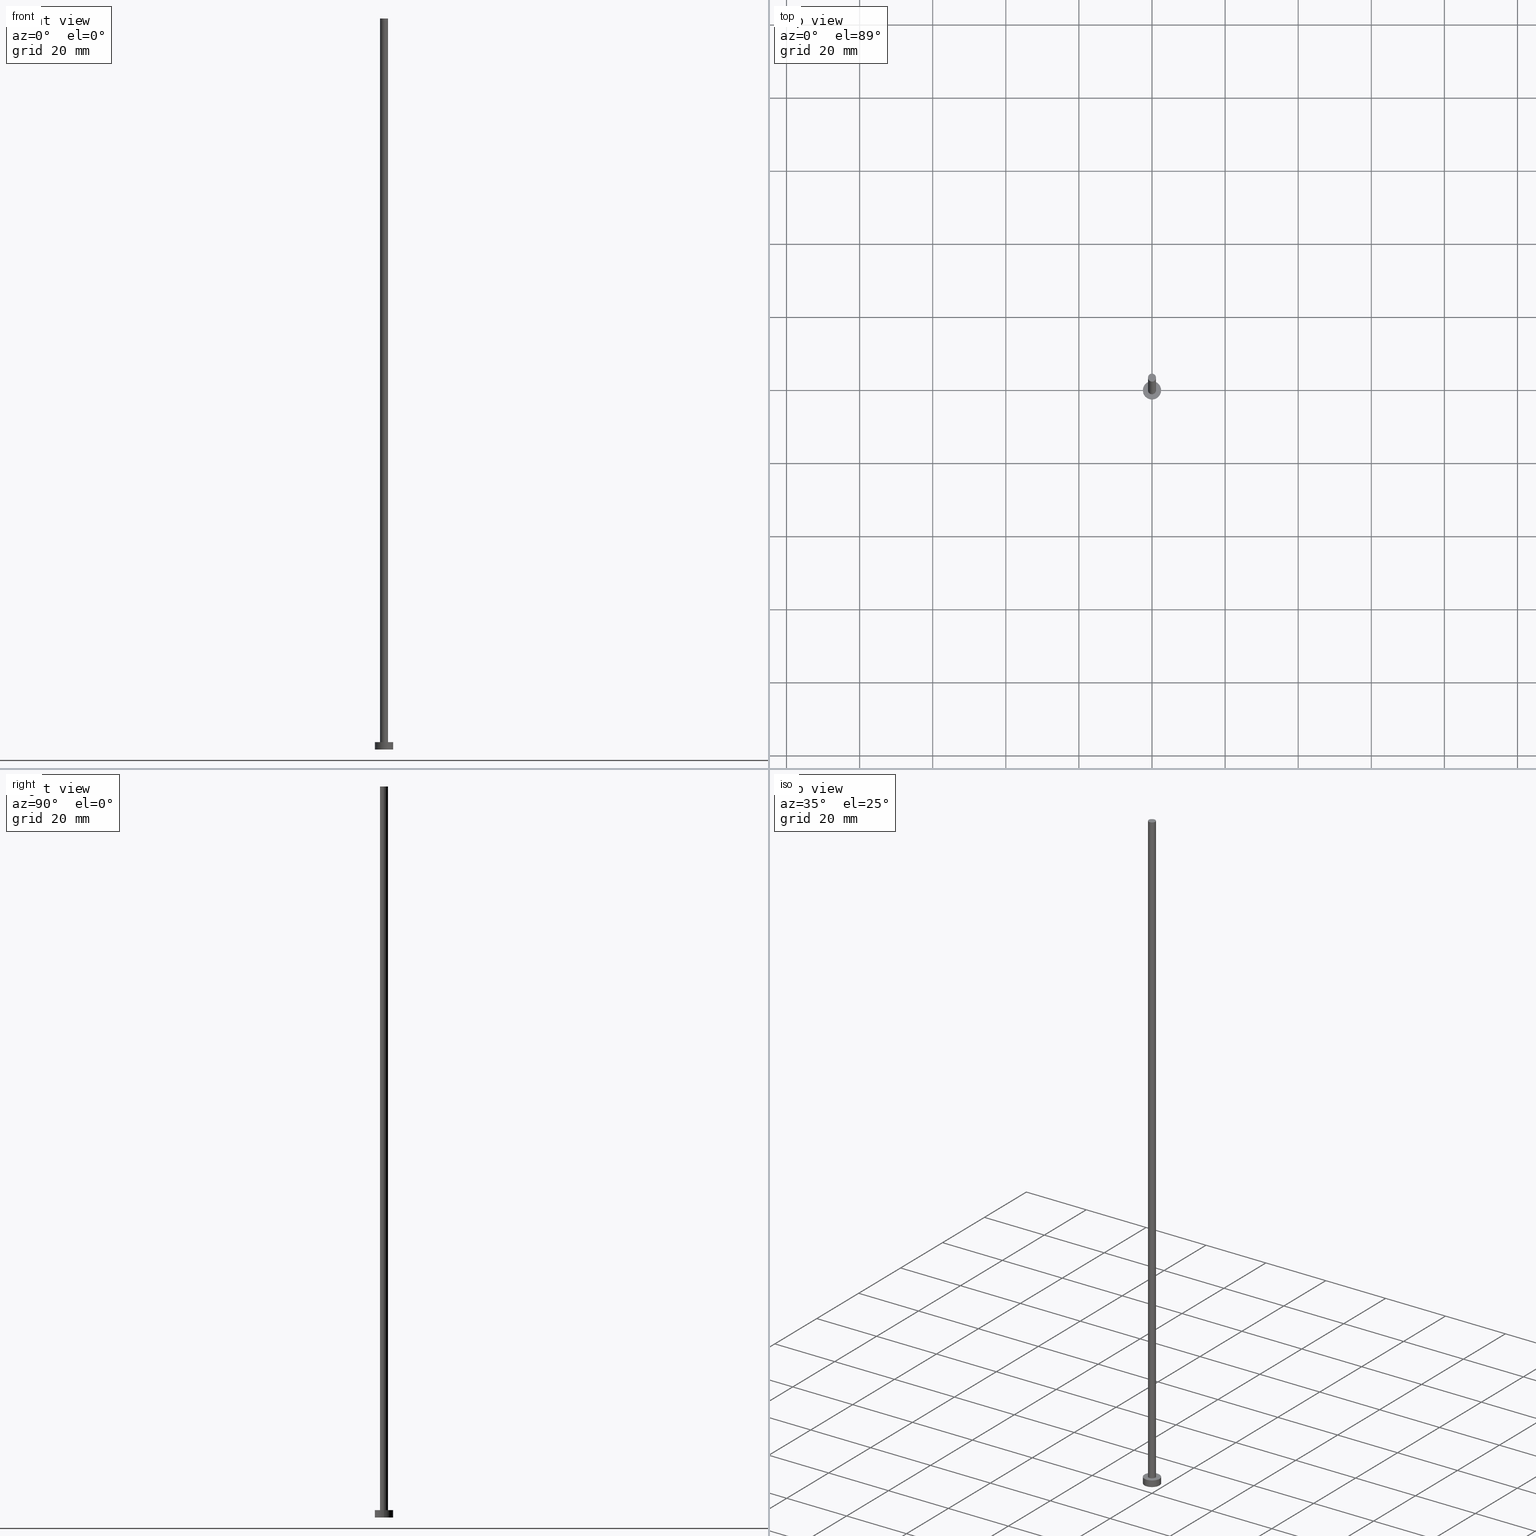
[diagram: canonical four-view strip — front | top / right | iso, engineering-drawing reading convention]
A machine part, canonical four-view strip (front | top / right | iso — engineering-drawing reading convention). The complete STEP part file that produces these views, byte-faithful:
ISO-10303-21;
HEADER;
FILE_DESCRIPTION (( 'STEP AP203' ),
    '1' );
FILE_NAME ('8570.STEP',
    '2023-02-13T15:58:24',
    ( '' ),
    ( '' ),
    'SwSTEP 2.0',
    'SolidWorks 2019',
    '' );
FILE_SCHEMA (( 'CONFIG_CONTROL_DESIGN' ));
ENDSEC;

DATA;
#1 = CARTESIAN_POINT ( 'NONE',  ( 0.000000000000000000, 0.000000000000000000, 200.0000000000000000 ) ) ;
#2 = PERSON ( 'NEUR�EN�', 'NEUR�EN�', 'NEUR�EN�', ('NEUR�EN�'), ('NEUR�EN�'), ('NEUR�EN�') ) ;
#3 = CC_DESIGN_PERSON_AND_ORGANIZATION_ASSIGNMENT ( #29, #131, ( #221 ) ) ;
#4 = ORIENTED_EDGE ( 'NONE', *, *, #111, .F. ) ;
#5 = FACE_OUTER_BOUND ( 'NONE', #183, .T. ) ;
#6 = APPROVAL_PERSON_ORGANIZATION ( #172, #46, #38 ) ;
#7 = DIRECTION ( 'NONE',  ( 1.000000000000000000, 0.000000000000000000, -0.000000000000000000 ) ) ;
#8 = ORIENTED_EDGE ( 'NONE', *, *, #111, .T. ) ;
#9 =( LENGTH_UNIT ( ) NAMED_UNIT ( * ) SI_UNIT ( .MILLI., .METRE. ) );
#10 = CARTESIAN_POINT ( 'NONE',  ( 0.000000000000000000, 0.000000000000000000, 2.000000000000000000 ) ) ;
#11 = CARTESIAN_POINT ( 'NONE',  ( 0.000000000000000000, 0.000000000000000000, 200.0000000000000000 ) ) ;
#12 = EDGE_LOOP ( 'NONE', ( #61, #49 ) ) ;
#13 = PERSON_AND_ORGANIZATION ( #2, #56 ) ;
#14 = AXIS2_PLACEMENT_3D ( 'NONE', #1, #95, #231 ) ;
#15 = DATE_AND_TIME ( #116, #31 ) ;
#16 = DIRECTION ( 'NONE',  ( -0.000000000000000000, -0.000000000000000000, -1.000000000000000000 ) ) ;
#17 = CARTESIAN_POINT ( 'NONE',  ( -1.100000000000000089, 0.000000000000000000, 200.0000000000000000 ) ) ;
#18 = AXIS2_PLACEMENT_3D ( 'NONE', #94, #223, #184 ) ;
#19 = EDGE_CURVE ( 'NONE', #120, #109, #247, .T. ) ;
#20 = UNCERTAINTY_MEASURE_WITH_UNIT (LENGTH_MEASURE( 1.000000000000000082E-05 ), #9, 'distance_accuracy_value', 'NONE');
#21 = CIRCLE ( 'NONE', #85, 2.500000000000000000 ) ;
#22 = PLANE ( 'NONE',  #133 ) ;
#23 = CC_DESIGN_PERSON_AND_ORGANIZATION_ASSIGNMENT ( #170, #234, ( #44 ) ) ;
#24 = CYLINDRICAL_SURFACE ( 'NONE', #115, 1.100000000000000089 ) ;
#25 = VERTEX_POINT ( 'NONE', #151 ) ;
#26 = ORIENTED_EDGE ( 'NONE', *, *, #242, .F. ) ;
#27 = DIRECTION ( 'NONE',  ( 0.000000000000000000, 0.000000000000000000, 1.000000000000000000 ) ) ;
#28 = DATE_AND_TIME ( #93, #117 ) ;
#29 = PERSON_AND_ORGANIZATION ( #2, #56 ) ;
#30 = PERSON_AND_ORGANIZATION ( #2, #56 ) ;
#31 = LOCAL_TIME ( 16, 58, 24.00000000000000000, #153 ) ;
#32 = DIRECTION ( 'NONE',  ( 0.000000000000000000, 0.000000000000000000, 1.000000000000000000 ) ) ;
#33 = PERSON_AND_ORGANIZATION_ROLE ( 'design_owner' ) ;
#34 = CARTESIAN_POINT ( 'NONE',  ( 0.000000000000000000, 0.000000000000000000, 2.000000000000000000 ) ) ;
#35 = DATE_AND_TIME ( #71, #174 ) ;
#36 = SHAPE_DEFINITION_REPRESENTATION ( #200, #68 ) ;
#37 = CARTESIAN_POINT ( 'NONE',  ( 1.100000000000000089, 1.347111479062088503E-16, 200.0000000000000000 ) ) ;
#38 = APPROVAL_ROLE ( '' ) ;
#39 = DIRECTION ( 'NONE',  ( 0.000000000000000000, 0.000000000000000000, 1.000000000000000000 ) ) ;
#40 = PERSON_AND_ORGANIZATION ( #2, #56 ) ;
#41 = EDGE_CURVE ( 'NONE', #163, #204, #125, .T. ) ;
#42 = AXIS2_PLACEMENT_3D ( 'NONE', #164, #48, #226 ) ;
#43 = ORIENTED_EDGE ( 'NONE', *, *, #90, .T. ) ;
#44 = SECURITY_CLASSIFICATION ( '', '', #186 ) ;
#45 = ORIENTED_EDGE ( 'NONE', *, *, #84, .F. ) ;
#46 = APPROVAL ( #74, 'NEUR�EN�' ) ;
#47 = ORIENTED_EDGE ( 'NONE', *, *, #199, .T. ) ;
#48 = DIRECTION ( 'NONE',  ( 0.000000000000000000, 0.000000000000000000, 1.000000000000000000 ) ) ;
#49 = ORIENTED_EDGE ( 'NONE', *, *, #218, .T. ) ;
#50 = DIRECTION ( 'NONE',  ( -0.000000000000000000, -0.000000000000000000, -1.000000000000000000 ) ) ;
#51 = COORDINATED_UNIVERSAL_TIME_OFFSET ( 1, 0, .AHEAD. ) ;
#52 = DIRECTION ( 'NONE',  ( 1.000000000000000000, 0.000000000000000000, 0.000000000000000000 ) ) ;
#53 = APPROVAL ( #110, 'NEUR�EN�' ) ;
#54 = APPROVAL_ROLE ( '' ) ;
#55 = ORIENTED_EDGE ( 'NONE', *, *, #219, .F. ) ;
#56 = ORGANIZATION ( 'NEUR�EN�', 'NEUR�EN�', '' ) ;
#57 = ADVANCED_FACE ( 'NONE', ( #128 ), #198, .T. ) ;
#58 = AXIS2_PLACEMENT_3D ( 'NONE', #225, #165, #213 ) ;
#59 = ORIENTED_EDGE ( 'NONE', *, *, #242, .T. ) ;
#60 = LINE ( 'NONE', #141, #250 ) ;
#61 = ORIENTED_EDGE ( 'NONE', *, *, #41, .T. ) ;
#62 = CARTESIAN_POINT ( 'NONE',  ( 0.000000000000000000, 0.000000000000000000, 200.0000000000000000 ) ) ;
#63 = AXIS2_PLACEMENT_3D ( 'NONE', #235, #230, #52 ) ;
#64 = ORIENTED_EDGE ( 'NONE', *, *, #199, .F. ) ;
#65 = EDGE_CURVE ( 'NONE', #240, #25, #21, .T. ) ;
#66 = DIRECTION ( 'NONE',  ( 0.000000000000000000, 0.000000000000000000, 1.000000000000000000 ) ) ;
#67 = CARTESIAN_POINT ( 'NONE',  ( 0.000000000000000000, 0.000000000000000000, 0.000000000000000000 ) ) ;
#68 = ADVANCED_BREP_SHAPE_REPRESENTATION ( '8570', ( #195, #63 ), #254 ) ;
#69 = LOCAL_TIME ( 16, 58, 24.00000000000000000, #89 ) ;
#70 = DIRECTION ( 'NONE',  ( 0.000000000000000000, 0.000000000000000000, 1.000000000000000000 ) ) ;
#71 = CALENDAR_DATE ( 2023, 13, 2 ) ;
#72 = FACE_OUTER_BOUND ( 'NONE', #12, .T. ) ;
#73 = ADVANCED_FACE ( 'NONE', ( #210, #72 ), #196, .T. ) ;
#74 = APPROVAL_STATUS ( 'not_yet_approved' ) ;
#75 = CARTESIAN_POINT ( 'NONE',  ( 0.000000000000000000, 0.000000000000000000, 2.000000000000000000 ) ) ;
#76 = AXIS2_PLACEMENT_3D ( 'NONE', #75, #32, #212 ) ;
#77 = CARTESIAN_POINT ( 'NONE',  ( 2.500000000000000000, 3.061616997868383141E-16, 2.000000000000000000 ) ) ;
#78 = CALENDAR_DATE ( 2023, 13, 2 ) ;
#79 = CARTESIAN_POINT ( 'NONE',  ( -1.100000000000000089, 0.000000000000000000, 200.0000000000000000 ) ) ;
#80 = PRODUCT_DEFINITION ( 'NEZN�M�', '', #221, #248 ) ;
#81 = CC_DESIGN_APPROVAL ( #46, ( #221 ) ) ;
#82 = APPROVAL_DATE_TIME ( #136, #53 ) ;
#83 = ORIENTED_EDGE ( 'NONE', *, *, #191, .T. ) ;
#84 = EDGE_CURVE ( 'NONE', #163, #25, #152, .T. ) ;
#85 = AXIS2_PLACEMENT_3D ( 'NONE', #154, #39, #215 ) ;
#86 = CC_DESIGN_APPROVAL ( #53, ( #44 ) ) ;
#87 = EDGE_LOOP ( 'NONE', ( #185, #124, #106, #45 ) ) ;
#88 = CYLINDRICAL_SURFACE ( 'NONE', #58, 2.500000000000000000 ) ;
#89 = COORDINATED_UNIVERSAL_TIME_OFFSET ( 1, 0, .AHEAD. ) ;
#90 = EDGE_CURVE ( 'NONE', #102, #120, #236, .T. ) ;
#91 = CARTESIAN_POINT ( 'NONE',  ( 0.000000000000000000, 0.000000000000000000, 2.000000000000000000 ) ) ;
#92 = DIRECTION ( 'NONE',  ( 1.000000000000000000, 0.000000000000000000, 0.000000000000000000 ) ) ;
#93 = CALENDAR_DATE ( 2023, 13, 2 ) ;
#94 = CARTESIAN_POINT ( 'NONE',  ( 0.000000000000000000, 0.000000000000000000, 200.0000000000000000 ) ) ;
#95 = DIRECTION ( 'NONE',  ( -0.000000000000000000, -0.000000000000000000, -1.000000000000000000 ) ) ;
#96 = CC_DESIGN_DATE_AND_TIME_ASSIGNMENT ( #28, #169, ( #80 ) ) ;
#97 = AXIS2_PLACEMENT_3D ( 'NONE', #91, #70, #92 ) ;
#98 = ORIENTED_EDGE ( 'NONE', *, *, #65, .F. ) ;
#99 = AXIS2_PLACEMENT_3D ( 'NONE', #34, #197, #243 ) ;
#100 = CC_DESIGN_DATE_AND_TIME_ASSIGNMENT ( #35, #228, ( #44 ) ) ;
#101 = CIRCLE ( 'NONE', #135, 1.100000000000000089 ) ;
#102 = VERTEX_POINT ( 'NONE', #79 ) ;
#103 = CIRCLE ( 'NONE', #144, 2.500000000000000000 ) ;
#104 = APPLICATION_CONTEXT ( 'configuration controlled 3d designs of mechanical parts and assemblies' ) ;
#105 = ORIENTED_EDGE ( 'NONE', *, *, #84, .T. ) ;
#106 = ORIENTED_EDGE ( 'NONE', *, *, #65, .T. ) ;
#107 = CARTESIAN_POINT ( 'NONE',  ( -2.500000000000000000, 0.000000000000000000, 2.000000000000000000 ) ) ;
#108 = APPROVAL_PERSON_ORGANIZATION ( #253, #180, #54 ) ;
#109 = VERTEX_POINT ( 'NONE', #155 ) ;
#110 = APPROVAL_STATUS ( 'not_yet_approved' ) ;
#111 = EDGE_CURVE ( 'NONE', #129, #102, #101, .T. ) ;
#112 = MECHANICAL_CONTEXT ( 'NONE', #177, 'mechanical' ) ;
#113 = CARTESIAN_POINT ( 'NONE',  ( -2.500000000000000000, 0.000000000000000000, 2.000000000000000000 ) ) ;
#114 = APPLICATION_PROTOCOL_DEFINITION ( 'international standard', 'config_control_design', 1994, #104 ) ;
#115 = AXIS2_PLACEMENT_3D ( 'NONE', #62, #50, #167 ) ;
#116 = CALENDAR_DATE ( 2023, 13, 2 ) ;
#117 = LOCAL_TIME ( 16, 58, 24.00000000000000000, #51 ) ;
#118 = VECTOR ( 'NONE', #166, 1000.000000000000000 ) ;
#119 = ADVANCED_FACE ( 'NONE', ( #127 ), #222, .T. ) ;
#120 = VERTEX_POINT ( 'NONE', #181 ) ;
#121 = CARTESIAN_POINT ( 'NONE',  ( 2.500000000000000000, 3.061616997868383141E-16, 0.000000000000000000 ) ) ;
#122 = DIRECTION ( 'NONE',  ( 1.000000000000000000, 0.000000000000000000, 0.000000000000000000 ) ) ;
#123 = DIRECTION ( 'NONE',  ( -0.000000000000000000, -0.000000000000000000, -1.000000000000000000 ) ) ;
#124 = ORIENTED_EDGE ( 'NONE', *, *, #219, .T. ) ;
#125 = CIRCLE ( 'NONE', #42, 2.500000000000000000 ) ;
#126 = APPROVAL_DATE_TIME ( #15, #46 ) ;
#127 = FACE_OUTER_BOUND ( 'NONE', #142, .T. ) ;
#128 = FACE_OUTER_BOUND ( 'NONE', #208, .T. ) ;
#129 = VERTEX_POINT ( 'NONE', #203 ) ;
#130 = FACE_OUTER_BOUND ( 'NONE', #245, .T. ) ;
#131 = PERSON_AND_ORGANIZATION_ROLE ( 'design_supplier' ) ;
#132 = CLOSED_SHELL ( 'NONE', ( #57, #201, #119, #73, #255, #233, #168 ) ) ;
#133 = AXIS2_PLACEMENT_3D ( 'NONE', #150, #66, #7 ) ;
#134 = CC_DESIGN_PERSON_AND_ORGANIZATION_ASSIGNMENT ( #193, #33, ( #175 ) ) ;
#135 = AXIS2_PLACEMENT_3D ( 'NONE', #238, #148, #143 ) ;
#136 = DATE_AND_TIME ( #78, #69 ) ;
#137 = ORIENTED_EDGE ( 'NONE', *, *, #161, .T. ) ;
#138 = CC_DESIGN_PERSON_AND_ORGANIZATION_ASSIGNMENT ( #40, #227, ( #80 ) ) ;
#139 = CC_DESIGN_SECURITY_CLASSIFICATION ( #44, ( #221 ) ) ;
#140 = AXIS2_PLACEMENT_3D ( 'NONE', #11, #229, #249 ) ;
#141 = CARTESIAN_POINT ( 'NONE',  ( 2.500000000000000000, 3.061616997868383141E-16, 2.000000000000000000 ) ) ;
#142 = EDGE_LOOP ( 'NONE', ( #55, #145, #105, #47 ) ) ;
#143 = DIRECTION ( 'NONE',  ( 1.000000000000000000, 0.000000000000000000, 0.000000000000000000 ) ) ;
#144 = AXIS2_PLACEMENT_3D ( 'NONE', #67, #205, #122 ) ;
#145 = ORIENTED_EDGE ( 'NONE', *, *, #41, .F. ) ;
#146 = CC_DESIGN_PERSON_AND_ORGANIZATION_ASSIGNMENT ( #13, #192, ( #221 ) ) ;
#147 = FACE_OUTER_BOUND ( 'NONE', #159, .T. ) ;
#148 = DIRECTION ( 'NONE',  ( 0.000000000000000000, 0.000000000000000000, 1.000000000000000000 ) ) ;
#149 = FACE_OUTER_BOUND ( 'NONE', #87, .T. ) ;
#150 = CARTESIAN_POINT ( 'NONE',  ( 0.000000000000000000, 0.000000000000000000, 0.000000000000000000 ) ) ;
#151 = CARTESIAN_POINT ( 'NONE',  ( -2.500000000000000000, 0.000000000000000000, 0.000000000000000000 ) ) ;
#152 = LINE ( 'NONE', #113, #158 ) ;
#153 = COORDINATED_UNIVERSAL_TIME_OFFSET ( 1, 0, .AHEAD. ) ;
#154 = CARTESIAN_POINT ( 'NONE',  ( 0.000000000000000000, 0.000000000000000000, 0.000000000000000000 ) ) ;
#155 = CARTESIAN_POINT ( 'NONE',  ( 1.100000000000000089, 1.347111479062088503E-16, 2.000000000000000000 ) ) ;
#156 = AXIS2_PLACEMENT_3D ( 'NONE', #10, #123, #207 ) ;
#157 = CIRCLE ( 'NONE', #182, 1.100000000000000089 ) ;
#158 = VECTOR ( 'NONE', #194, 1000.000000000000000 ) ;
#159 = EDGE_LOOP ( 'NONE', ( #178, #224, #43, #239 ) ) ;
#160 = CIRCLE ( 'NONE', #99, 2.500000000000000000 ) ;
#161 = EDGE_CURVE ( 'NONE', #129, #109, #241, .T. ) ;
#162 = ORIENTED_EDGE ( 'NONE', *, *, #19, .F. ) ;
#163 = VERTEX_POINT ( 'NONE', #107 ) ;
#164 = CARTESIAN_POINT ( 'NONE',  ( 0.000000000000000000, 0.000000000000000000, 2.000000000000000000 ) ) ;
#165 = DIRECTION ( 'NONE',  ( -0.000000000000000000, -0.000000000000000000, -1.000000000000000000 ) ) ;
#166 = DIRECTION ( 'NONE',  ( -0.000000000000000000, -0.000000000000000000, -1.000000000000000000 ) ) ;
#167 = DIRECTION ( 'NONE',  ( -1.000000000000000000, 0.000000000000000000, 0.000000000000000000 ) ) ;
#168 = ADVANCED_FACE ( 'NONE', ( #130 ), #187, .T. ) ;
#169 = DATE_TIME_ROLE ( 'creation_date' ) ;
#170 = PERSON_AND_ORGANIZATION ( #2, #56 ) ;
#171 = PRODUCT_RELATED_PRODUCT_CATEGORY ( 'detail', '', ( #175 ) ) ;
#172 = PERSON_AND_ORGANIZATION ( #2, #56 ) ;
#173 = APPROVAL_ROLE ( '' ) ;
#174 = LOCAL_TIME ( 16, 58, 24.00000000000000000, #252 ) ;
#175 = PRODUCT ( '8570', '8570', '', ( #112 ) ) ;
#176 = CC_DESIGN_APPROVAL ( #180, ( #80 ) ) ;
#177 = APPLICATION_CONTEXT ( 'configuration controlled 3d designs of mechanical parts and assemblies' ) ;
#178 = ORIENTED_EDGE ( 'NONE', *, *, #161, .F. ) ;
#179 = DIRECTION ( 'NONE',  ( -0.000000000000000000, -0.000000000000000000, -1.000000000000000000 ) ) ;
#180 = APPROVAL ( #237, 'NEUR�EN�' ) ;
#181 = CARTESIAN_POINT ( 'NONE',  ( -1.100000000000000089, 0.000000000000000000, 2.000000000000000000 ) ) ;
#182 = AXIS2_PLACEMENT_3D ( 'NONE', #246, #27, #209 ) ;
#183 = EDGE_LOOP ( 'NONE', ( #64, #98 ) ) ;
#184 = DIRECTION ( 'NONE',  ( 1.000000000000000000, 0.000000000000000000, 0.000000000000000000 ) ) ;
#185 = ORIENTED_EDGE ( 'NONE', *, *, #218, .F. ) ;
#186 = SECURITY_CLASSIFICATION_LEVEL ( 'unclassified' ) ;
#187 = PLANE ( 'NONE',  #140 ) ;
#188 =( NAMED_UNIT ( * ) SI_UNIT ( $, .STERADIAN. ) SOLID_ANGLE_UNIT ( ) );
#189 = APPROVAL_PERSON_ORGANIZATION ( #30, #53, #173 ) ;
#190 = APPLICATION_PROTOCOL_DEFINITION ( 'international standard', 'config_control_design', 1994, #177 ) ;
#191 = EDGE_CURVE ( 'NONE', #102, #129, #211, .T. ) ;
#192 = PERSON_AND_ORGANIZATION_ROLE ( 'creator' ) ;
#193 = PERSON_AND_ORGANIZATION ( #2, #56 ) ;
#194 = DIRECTION ( 'NONE',  ( -0.000000000000000000, -0.000000000000000000, -1.000000000000000000 ) ) ;
#195 = MANIFOLD_SOLID_BREP ( 'P�idat vysunut�m3', #132 ) ;
#196 = PLANE ( 'NONE',  #76 ) ;
#197 = DIRECTION ( 'NONE',  ( 0.000000000000000000, 0.000000000000000000, 1.000000000000000000 ) ) ;
#198 = CYLINDRICAL_SURFACE ( 'NONE', #14, 1.100000000000000089 ) ;
#199 = EDGE_CURVE ( 'NONE', #25, #240, #103, .T. ) ;
#200 = PRODUCT_DEFINITION_SHAPE ( 'NONE', 'NONE',  #80 ) ;
#201 = ADVANCED_FACE ( 'NONE', ( #149 ), #88, .T. ) ;
#202 = VECTOR ( 'NONE', #16, 1000.000000000000000 ) ;
#203 = CARTESIAN_POINT ( 'NONE',  ( 1.100000000000000089, 1.347111479062088503E-16, 200.0000000000000000 ) ) ;
#204 = VERTEX_POINT ( 'NONE', #77 ) ;
#205 = DIRECTION ( 'NONE',  ( 0.000000000000000000, 0.000000000000000000, 1.000000000000000000 ) ) ;
#206 = EDGE_LOOP ( 'NONE', ( #162, #26 ) ) ;
#207 = DIRECTION ( 'NONE',  ( -1.000000000000000000, 0.000000000000000000, 0.000000000000000000 ) ) ;
#208 = EDGE_LOOP ( 'NONE', ( #4, #137, #59, #244 ) ) ;
#209 = DIRECTION ( 'NONE',  ( 1.000000000000000000, 0.000000000000000000, 0.000000000000000000 ) ) ;
#210 = FACE_BOUND ( 'NONE', #206, .T. ) ;
#211 = CIRCLE ( 'NONE', #18, 1.100000000000000089 ) ;
#212 = DIRECTION ( 'NONE',  ( 1.000000000000000000, 0.000000000000000000, -0.000000000000000000 ) ) ;
#213 = DIRECTION ( 'NONE',  ( -1.000000000000000000, 0.000000000000000000, 0.000000000000000000 ) ) ;
#214 =( NAMED_UNIT ( * ) PLANE_ANGLE_UNIT ( ) SI_UNIT ( $, .RADIAN. ) );
#215 = DIRECTION ( 'NONE',  ( 1.000000000000000000, 0.000000000000000000, 0.000000000000000000 ) ) ;
#216 = COORDINATED_UNIVERSAL_TIME_OFFSET ( 1, 0, .AHEAD. ) ;
#217 = CALENDAR_DATE ( 2023, 13, 2 ) ;
#218 = EDGE_CURVE ( 'NONE', #204, #163, #160, .T. ) ;
#219 = EDGE_CURVE ( 'NONE', #204, #240, #60, .T. ) ;
#220 = LOCAL_TIME ( 16, 58, 24.00000000000000000, #216 ) ;
#221 = PRODUCT_DEFINITION_FORMATION_WITH_SPECIFIED_SOURCE ( 'LIBOVOLN�', '', #175, .NOT_KNOWN. ) ;
#222 = CYLINDRICAL_SURFACE ( 'NONE', #156, 2.500000000000000000 ) ;
#223 = DIRECTION ( 'NONE',  ( 0.000000000000000000, 0.000000000000000000, 1.000000000000000000 ) ) ;
#224 = ORIENTED_EDGE ( 'NONE', *, *, #191, .F. ) ;
#225 = CARTESIAN_POINT ( 'NONE',  ( 0.000000000000000000, 0.000000000000000000, 2.000000000000000000 ) ) ;
#226 = DIRECTION ( 'NONE',  ( 1.000000000000000000, 0.000000000000000000, 0.000000000000000000 ) ) ;
#227 = PERSON_AND_ORGANIZATION_ROLE ( 'creator' ) ;
#228 = DATE_TIME_ROLE ( 'classification_date' ) ;
#229 = DIRECTION ( 'NONE',  ( 0.000000000000000000, 0.000000000000000000, 1.000000000000000000 ) ) ;
#230 = DIRECTION ( 'NONE',  ( 0.000000000000000000, 0.000000000000000000, 1.000000000000000000 ) ) ;
#231 = DIRECTION ( 'NONE',  ( -1.000000000000000000, 0.000000000000000000, 0.000000000000000000 ) ) ;
#232 = APPROVAL_DATE_TIME ( #251, #180 ) ;
#233 = ADVANCED_FACE ( 'NONE', ( #147 ), #24, .T. ) ;
#234 = PERSON_AND_ORGANIZATION_ROLE ( 'classification_officer' ) ;
#235 = CARTESIAN_POINT ( 'NONE',  ( 0.000000000000000000, 0.000000000000000000, 0.000000000000000000 ) ) ;
#236 = LINE ( 'NONE', #17, #202 ) ;
#237 = APPROVAL_STATUS ( 'not_yet_approved' ) ;
#238 = CARTESIAN_POINT ( 'NONE',  ( 0.000000000000000000, 0.000000000000000000, 200.0000000000000000 ) ) ;
#239 = ORIENTED_EDGE ( 'NONE', *, *, #19, .T. ) ;
#240 = VERTEX_POINT ( 'NONE', #121 ) ;
#241 = LINE ( 'NONE', #37, #118 ) ;
#242 = EDGE_CURVE ( 'NONE', #109, #120, #157, .T. ) ;
#243 = DIRECTION ( 'NONE',  ( 1.000000000000000000, 0.000000000000000000, 0.000000000000000000 ) ) ;
#244 = ORIENTED_EDGE ( 'NONE', *, *, #90, .F. ) ;
#245 = EDGE_LOOP ( 'NONE', ( #83, #8 ) ) ;
#246 = CARTESIAN_POINT ( 'NONE',  ( 0.000000000000000000, 0.000000000000000000, 2.000000000000000000 ) ) ;
#247 = CIRCLE ( 'NONE', #97, 1.100000000000000089 ) ;
#248 = DESIGN_CONTEXT ( 'detailed design', #104, 'design' ) ;
#249 = DIRECTION ( 'NONE',  ( 1.000000000000000000, 0.000000000000000000, -0.000000000000000000 ) ) ;
#250 = VECTOR ( 'NONE', #179, 1000.000000000000000 ) ;
#251 = DATE_AND_TIME ( #217, #220 ) ;
#252 = COORDINATED_UNIVERSAL_TIME_OFFSET ( 1, 0, .AHEAD. ) ;
#253 = PERSON_AND_ORGANIZATION ( #2, #56 ) ;
#254 =( GEOMETRIC_REPRESENTATION_CONTEXT ( 3 ) GLOBAL_UNCERTAINTY_ASSIGNED_CONTEXT ( ( #20 ) ) GLOBAL_UNIT_ASSIGNED_CONTEXT ( ( #9, #214, #188 ) ) REPRESENTATION_CONTEXT ( 'NONE', 'WORKASPACE' ) );
#255 = ADVANCED_FACE ( 'NONE', ( #5 ), #22, .F. ) ;
ENDSEC;
END-ISO-10303-21;
